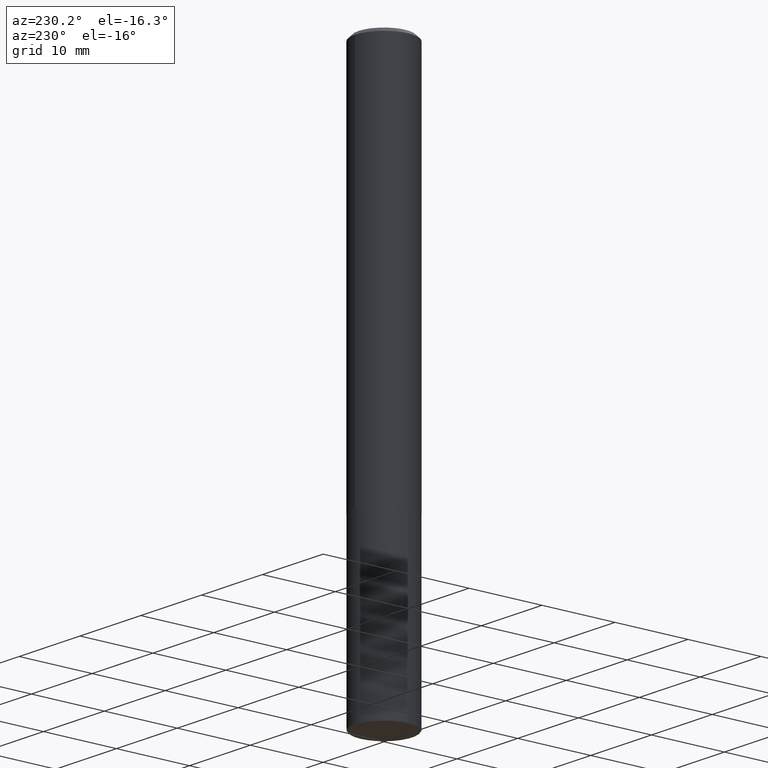
[diagram: clean part render]
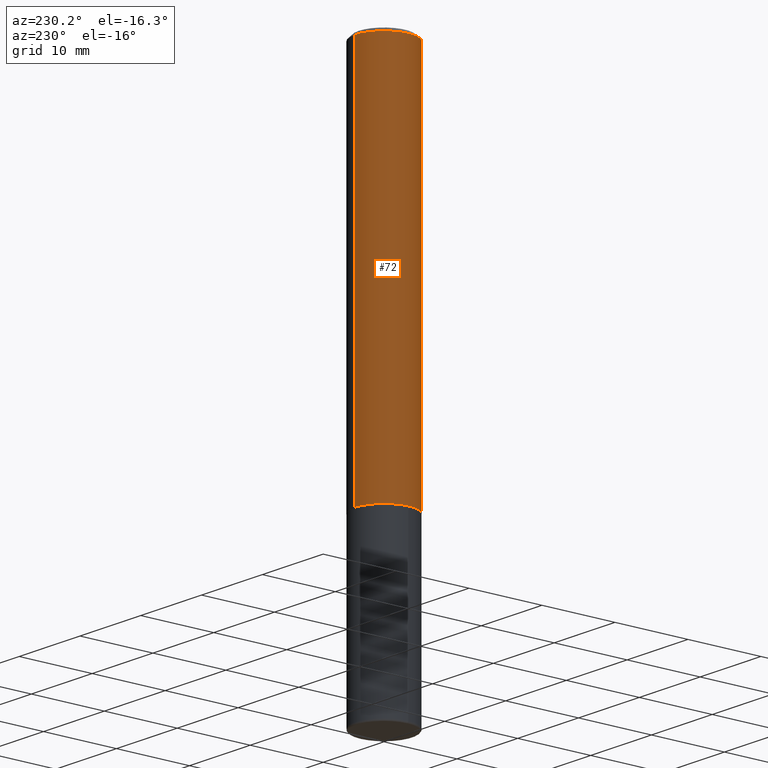
[diagram: same view with one face highlighted and labeled with its STEP entity id]
A machine part, auxiliary view. The second image highlights one B-rep face of the part: STEP entity #72.
In plain terms, the highlighted cylindrical surface (partial cylindrical patch) has radius 3.9688 mm, axis along (-0, 0, 1).
Its self-contained STEP definition (entity closure, byte-faithful):
#2 = CIRCLE ( 'NONE', #186, 0.1562500000000002776 ) ;
#8 = CIRCLE ( 'NONE', #195, 0.1562500000000000000 ) ;
#15 = CARTESIAN_POINT ( 'NONE',  ( -1.091087918388479962E-15, -0.1562500000000001388, 5.456094630612559989E-16 ) ) ;
#25 = CARTESIAN_POINT ( 'NONE',  ( 1.091087918388479568E-15, 0.1562499999999999445, -0.02000000000000057981 ) ) ;
#29 = ORIENTED_EDGE ( 'NONE', *, *, #202, .T. ) ;
#32 = CARTESIAN_POINT ( 'NONE',  ( 1.110223024625157329E-15, 0.1562500000000001388, -5.456094630612559989E-16 ) ) ;
#35 = CYLINDRICAL_SURFACE ( 'NONE', #214, 0.1562500000000001388 ) ;
#37 = EDGE_CURVE ( 'NONE', #273, #378, #66, .T. ) ;
#44 = DIRECTION ( 'NONE',  ( -2.445176063107630933E-29, 3.491900563592034843E-15, 1.000000000000000000 ) ) ;
#62 = VECTOR ( 'NONE', #274, 39.37007874015748143 ) ;
#66 = LINE ( 'NONE', #32, #354 ) ;
#72 = ADVANCED_FACE ( 'NONE', ( #200 ), #35, .T. ) ;
#121 = EDGE_CURVE ( 'NONE', #378, #279, #8, .T. ) ;
#136 = DIRECTION ( 'NONE',  ( -6.982962677686265922E-15, -1.000000000000000000, 3.491900563592035238E-15 ) ) ;
#147 = CARTESIAN_POINT ( 'NONE',  ( 5.040730454096381281E-29, -7.198553011844980434E-15, -2.061500000000000110 ) ) ;
#166 = CARTESIAN_POINT ( 'NONE',  ( 0.000000000000000000, 0.000000000000000000, 0.000000000000000000 ) ) ;
#183 = LINE ( 'NONE', #15, #62 ) ;
#186 = AXIS2_PLACEMENT_3D ( 'NONE', #147, #257, #190 ) ;
#187 = ORIENTED_EDGE ( 'NONE', *, *, #121, .F. ) ;
#190 = DIRECTION ( 'NONE',  ( -6.982962677686265922E-15, -1.000000000000000000, 3.496765431890250609E-15 ) ) ;
#195 = AXIS2_PLACEMENT_3D ( 'NONE', #309, #44, #216 ) ;
#200 = FACE_OUTER_BOUND ( 'NONE', #206, .T. ) ;
#202 = EDGE_CURVE ( 'NONE', #248, #279, #183, .T. ) ;
#206 = EDGE_LOOP ( 'NONE', ( #413, #373, #29, #187 ) ) ;
#214 = AXIS2_PLACEMENT_3D ( 'NONE', #166, #297, #136 ) ;
#216 = DIRECTION ( 'NONE',  ( -6.982962677686265133E-15, -1.000000000000000000, 3.496765431890256920E-15 ) ) ;
#248 = VERTEX_POINT ( 'NONE', #312 ) ;
#257 = DIRECTION ( 'NONE',  ( -2.445176063107630933E-29, 3.491900563592034843E-15, 1.000000000000000000 ) ) ;
#269 = CARTESIAN_POINT ( 'NONE',  ( -1.071952812151801215E-15, -0.1562500000000000833, -0.01999999999999948694 ) ) ;
#273 = VERTEX_POINT ( 'NONE', #402 ) ;
#274 = DIRECTION ( 'NONE',  ( -2.445176063107631214E-29, 3.491900563592034843E-15, 1.000000000000000000 ) ) ;
#279 = VERTEX_POINT ( 'NONE', #269 ) ;
#291 = DIRECTION ( 'NONE',  ( -2.445176063107631214E-29, 3.491900563592034843E-15, 1.000000000000000000 ) ) ;
#297 = DIRECTION ( 'NONE',  ( -2.445176063107630933E-29, 3.491900563592034843E-15, 1.000000000000000000 ) ) ;
#309 = CARTESIAN_POINT ( 'NONE',  ( 4.890352126215269679E-31, -6.983801127184080238E-17, -0.02000000000000003511 ) ) ;
#312 = CARTESIAN_POINT ( 'NONE',  ( -1.091087918388430659E-15, -0.1562500000000074940, -2.061499999999999666 ) ) ;
#354 = VECTOR ( 'NONE', #291, 39.37007874015748143 ) ;
#373 = ORIENTED_EDGE ( 'NONE', *, *, #389, .T. ) ;
#378 = VERTEX_POINT ( 'NONE', #25 ) ;
#389 = EDGE_CURVE ( 'NONE', #273, #248, #2, .T. ) ;
#402 = CARTESIAN_POINT ( 'NONE',  ( 1.110223024625183362E-15, 0.1562499999999930611, -2.061500000000000554 ) ) ;
#413 = ORIENTED_EDGE ( 'NONE', *, *, #37, .F. ) ;